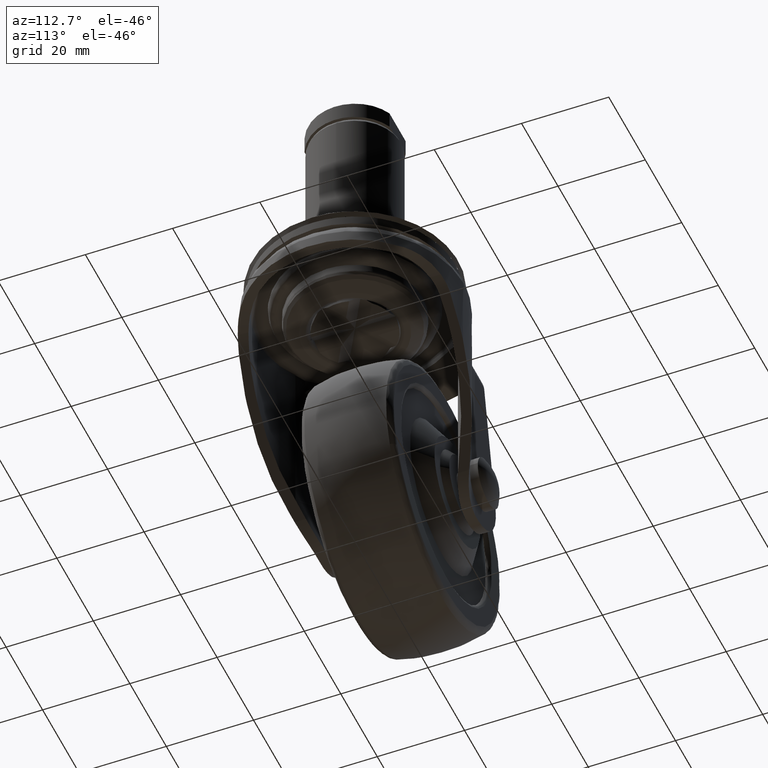
[diagram: clean part render]
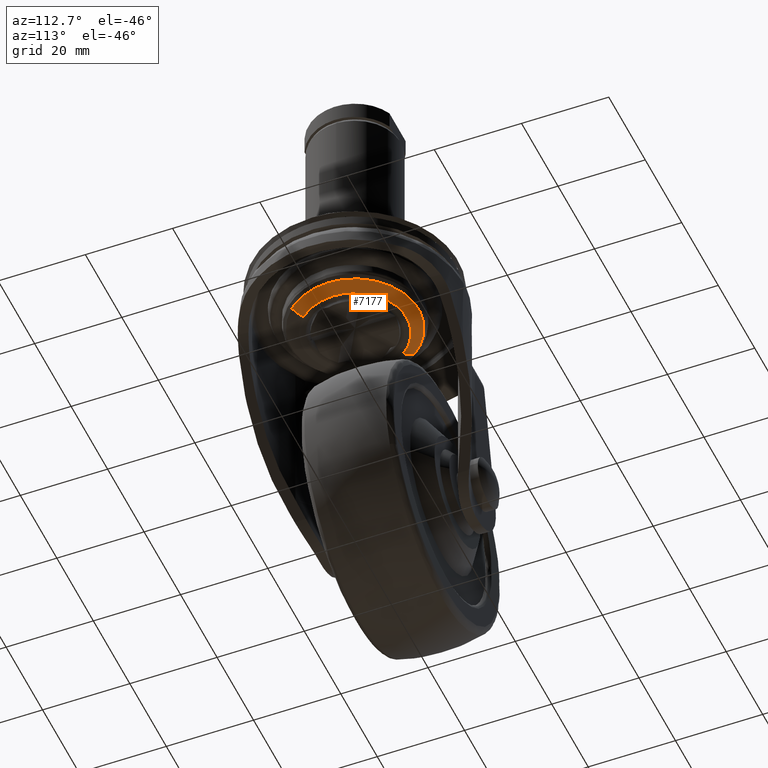
[diagram: same view with one face highlighted and labeled with its STEP entity id]
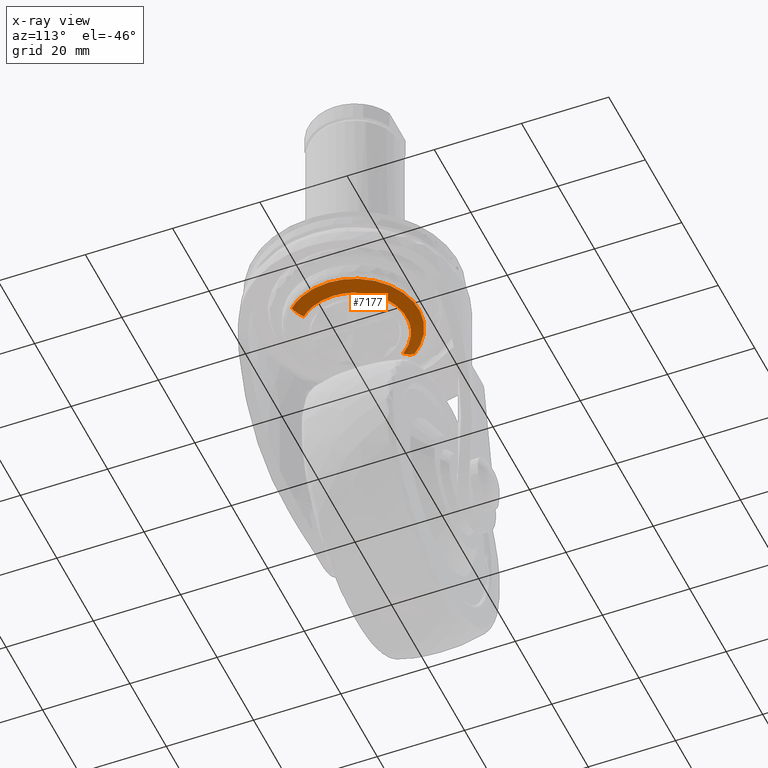
[diagram: x-ray of the same camera — body ghosted, the highlighted face saturated]
A machine part, auxiliary view. The second image highlights one B-rep face of the part: STEP entity #7177.
The next image is the same camera in x-ray: the body ghosted, the highlighted face saturated — about 0% of this face is hidden behind the body in this view.
In plain terms, the highlighted face is a freeform B-spline surface patch.
Its self-contained STEP definition (entity closure, byte-faithful):
#6856=CARTESIAN_POINT('',(-9.898739060657574,10.776566663449410,-17.293243959111489));
#6857=VERTEX_POINT('',#6856);
#6858=CARTESIAN_POINT('',(14.632820139928921,0.0,-17.293244004060352));
#6859=VERTEX_POINT('',#6858);
#6860=CARTESIAN_POINT('',(-9.898739060657574,10.776566663449405,-17.293243959111493));
#6861=CARTESIAN_POINT('',(-5.700510195016406,14.632820139928926,-17.293244004060348));
#6862=CARTESIAN_POINT('',(0.0,14.632820139928921,-17.293244004060352));
#6863=CARTESIAN_POINT('',(14.632820139928928,14.632820139928928,-17.293244004060355));
#6864=CARTESIAN_POINT('',(14.632820139928921,0.0,-17.293244004060352));
#6872=(BOUNDED_CURVE()B_SPLINE_CURVE(2,(#6860,#6861,#6862,#6863,#6864),.UNSPECIFIED.,.F.,.U.)B_SPLINE_CURVE_WITH_KNOTS((3,2,3),(0.131403499882465,0.250000000000000,0.500000000000000),.UNSPECIFIED.)CURVE()GEOMETRIC_REPRESENTATION_ITEM()RATIONAL_B_SPLINE_CURVE((0.853937711585461,0.861055557362260,1.0,0.707106781186548,1.0))REPRESENTATION_ITEM(''));
#6873=EDGE_CURVE('',#6857,#6859,#6872,.T.);
#6907=CARTESIAN_POINT('',(10.640535781752460,-10.044820730616721,-17.293244004522091));
#6908=VERTEX_POINT('',#6907);
#6924=CARTESIAN_POINT('',(14.632820139928921,0.0,-17.293244004060352));
#6925=CARTESIAN_POINT('',(14.632820139928915,-5.815771183991155,-17.293244004060348));
#6926=CARTESIAN_POINT('',(10.640535781752458,-10.044820730616721,-17.293244004522094));
#6934=(BOUNDED_CURVE()B_SPLINE_CURVE(2,(#6924,#6925,#6926),.UNSPECIFIED.,.F.,.U.)B_SPLINE_CURVE_WITH_KNOTS((3,3),(0.500000000000000,0.620655485560568),.UNSPECIFIED.)CURVE()GEOMETRIC_REPRESENTATION_ITEM()RATIONAL_B_SPLINE_CURVE((1.0,0.858643305866661,0.853730296276479))REPRESENTATION_ITEM(''));
#6935=EDGE_CURVE('',#6859,#6908,#6934,.T.);
#6957=CARTESIAN_POINT('',(-11.729185456977399,8.749036030896161,-17.293244076953780));
#6958=VERTEX_POINT('',#6957);
#6959=CARTESIAN_POINT('',(-11.729185456977403,8.749036030896161,-17.293244076953776));
#6960=CARTESIAN_POINT('',(-10.908998709066250,9.848599867244309,-17.293244004060352));
#6961=CARTESIAN_POINT('',(-9.898739060657574,10.776566663449405,-17.293243959111493));
#6969=(BOUNDED_CURVE()B_SPLINE_CURVE(2,(#6959,#6960,#6961),.UNSPECIFIED.,.F.,.U.)B_SPLINE_CURVE_WITH_KNOTS((3,3),(0.103156604492623,0.131403499882465),.UNSPECIFIED.)CURVE()GEOMETRIC_REPRESENTATION_ITEM()RATIONAL_B_SPLINE_CURVE((0.858025367929900,0.852242408226096,0.853937711585461))REPRESENTATION_ITEM(''));
#6970=EDGE_CURVE('',#6958,#6857,#6969,.T.);
#7033=CARTESIAN_POINT('',(-9.506558329628382,7.091133622677619,-18.655641609704279));
#7034=VERTEX_POINT('',#7033);
#7035=CARTESIAN_POINT('',(-11.729185456977401,8.749036030896161,-17.293244076953780));
#7036=CARTESIAN_POINT('',(-10.782327852762174,8.042755844247861,-18.392016281416272));
#7037=CARTESIAN_POINT('',(-9.506558329628382,7.091133622677619,-18.655641609704286));
#7045=(BOUNDED_CURVE()B_SPLINE_CURVE(2,(#7035,#7036,#7037),.UNSPECIFIED.,.F.,.U.)B_SPLINE_CURVE_WITH_KNOTS((3,3),(-1.485345873138249,-0.507939246962306),.UNSPECIFIED.)CURVE()GEOMETRIC_REPRESENTATION_ITEM()RATIONAL_B_SPLINE_CURVE((0.936316296584283,0.896796756868983,0.936863059166508))REPRESENTATION_ITEM(''));
#7046=EDGE_CURVE('',#6958,#7034,#7045,.T.);
#7063=CARTESIAN_POINT('',(8.624217249295594,-8.141386673364671,-18.655639596914678));
#7064=VERTEX_POINT('',#7063);
#7080=CARTESIAN_POINT('',(10.640535781752458,-10.044820730616721,-17.293244004522094));
#7081=CARTESIAN_POINT('',(9.781567032526896,-9.233941722607879,-18.392008836652870));
#7082=CARTESIAN_POINT('',(8.624217249295594,-8.141386673364671,-18.655639596914675));
#7090=(BOUNDED_CURVE()B_SPLINE_CURVE(2,(#7080,#7081,#7082),.UNSPECIFIED.,.F.,.U.)B_SPLINE_CURVE_WITH_KNOTS((3,3),(-1.485345940408771,-0.507945573745312),.UNSPECIFIED.)CURVE()GEOMETRIC_REPRESENTATION_ITEM()RATIONAL_B_SPLINE_CURVE((0.895948071642560,0.858132609629851,0.896470759627661))REPRESENTATION_ITEM(''));
#7091=EDGE_CURVE('',#6908,#7064,#7090,.T.);
#7096=CARTESIAN_POINT('',(-11.818367356097420,8.815558608558774,-17.186729282682961));
#7097=CARTESIAN_POINT('',(-3.002808747538644,20.633925964656189,-17.186729282682954));
#7098=CARTESIAN_POINT('',(8.815558608558774,11.818367356097420,-17.186729282682961));
#7099=CARTESIAN_POINT('',(20.633925964656189,3.002808747538645,-17.186729282682954));
#7100=CARTESIAN_POINT('',(11.818367356097420,-8.815558608558773,-17.186729282682961));
#7101=CARTESIAN_POINT('',(11.307718814735729,-9.500147336244000,-17.186729282682965));
#7102=CARTESIAN_POINT('',(10.721440165424355,-10.121195646949484,-17.186729282682965));
#7103=CARTESIAN_POINT('',(-10.800452867087161,8.056275658046880,-18.437964735261733));
#7104=CARTESIAN_POINT('',(-2.744177209040279,18.856728525134038,-18.437964735261733));
#7105=CARTESIAN_POINT('',(8.056275658046880,10.800452867087161,-18.437964735261733));
#7106=CARTESIAN_POINT('',(18.856728525134038,2.744177209040279,-18.437964735261733));
#7107=CARTESIAN_POINT('',(10.800452867087161,-8.056275658046880,-18.437964735261733));
#7108=CARTESIAN_POINT('',(10.333786420153755,-8.681900845005448,-18.437964735261744));
#7109=CARTESIAN_POINT('',(9.798003876924538,-9.249458343080516,-18.437964735261740));
#7110=CARTESIAN_POINT('',(-9.384526694920922,7.000107764460136,-18.678616182787572));
#7111=CARTESIAN_POINT('',(-2.384418930460786,16.384634459381065,-18.678616182787575));
#7112=CARTESIAN_POINT('',(7.000107764460136,9.384526694920922,-18.678616182787572));
#7113=CARTESIAN_POINT('',(16.384634459381065,2.384418930460786,-18.678616182787575));
#7114=CARTESIAN_POINT('',(9.384526694920924,-7.000107764460136,-18.678616182787572));
#7115=CARTESIAN_POINT('',(8.979039648890083,-7.543714253954589,-18.678616182787575));
#7116=CARTESIAN_POINT('',(8.513497542324394,-8.036865657616470,-18.678616182787575));
#7124=(BOUNDED_SURFACE()B_SPLINE_SURFACE(2,2,((#7096,#7103,#7110),(#7097,#7104,#7111),(#7098,#7105,#7112),(#7099,#7106,#7113),(#7100,#7107,#7114),(#7101,#7108,#7115),(#7102,#7109,#7116)),.UNSPECIFIED.,.F.,.F.,.U.)B_SPLINE_SURFACE_WITH_KNOTS((3,2,2,3),(3,3),(0.0,24.428790788041699,48.857581576083390,50.811884839126733),(0.0,3.471904711078901),.UNSPECIFIED.)GEOMETRIC_REPRESENTATION_ITEM()RATIONAL_B_SPLINE_SURFACE(((0.940462943924452,0.892622331392412,0.941065274525991),(0.665007725103644,0.631179303566121,0.665433637156508),(0.940462943924452,0.892622331392412,0.941065274525991),(0.665007725103644,0.631179303566121,0.665433637156508),(0.940462943924452,0.892622331392412,0.941065274525991),(0.918426526418787,0.871706889166309,0.919014743536432),(0.899915935714029,0.854137917696382,0.900492297505203)))REPRESENTATION_ITEM('')SURFACE());
#7125=ORIENTED_EDGE('',*,*,#6935,.T.);
#7126=ORIENTED_EDGE('',*,*,#7091,.T.);
#7127=CARTESIAN_POINT('',(11.859986720644541,0.0,-18.655640052190599));
#7128=VERTEX_POINT('',#7127);
#7129=CARTESIAN_POINT('',(11.859986720644541,0.0,-18.655640052190599));
#7130=CARTESIAN_POINT('',(11.859986720644541,-4.713717115620938,-18.655640052190591));
#7131=CARTESIAN_POINT('',(8.624217249295594,-8.141386673364671,-18.655639596914678));
#7139=(BOUNDED_CURVE()B_SPLINE_CURVE(2,(#7129,#7130,#7131),.UNSPECIFIED.,.F.,.U.)B_SPLINE_CURVE_WITH_KNOTS((3,3),(0.500000000000000,0.620655494168413),.UNSPECIFIED.)CURVE()GEOMETRIC_REPRESENTATION_ITEM()RATIONAL_B_SPLINE_CURVE((1.0,0.858643295781943,0.853730295575469))REPRESENTATION_ITEM(''));
#7140=EDGE_CURVE('',#7128,#7064,#7139,.T.);
#7141=ORIENTED_EDGE('',*,*,#7140,.F.);
#7142=CARTESIAN_POINT('',(-1.369382002978058,11.780610962202701,-18.655641593484980));
#7143=VERTEX_POINT('',#7142);
#7144=CARTESIAN_POINT('',(-1.369382002978058,11.780610962202701,-18.655641593484983));
#7145=CARTESIAN_POINT('',(-0.686985409045452,11.859934366258098,-18.655641553733513));
#7146=CARTESIAN_POINT('',(0.000005904767238,11.859935922718540,-18.655641509093659));
#7147=CARTESIAN_POINT('',(11.859989502010897,11.859962792920244,-18.655640738446472));
#7148=CARTESIAN_POINT('',(11.859986720644541,0.0,-18.655640052190599));
#7156=(BOUNDED_CURVE()B_SPLINE_CURVE(2,(#7144,#7145,#7146,#7147,#7148),.UNSPECIFIED.,.F.,.U.)B_SPLINE_CURVE_WITH_KNOTS((3,2,3),(0.230000229405598,0.250000000000000,0.500000000000000),.UNSPECIFIED.)CURVE()GEOMETRIC_REPRESENTATION_ITEM()RATIONAL_B_SPLINE_CURVE((0.956886569716985,0.976568811260300,1.0,0.707106781186547,1.0))REPRESENTATION_ITEM(''));
#7157=EDGE_CURVE('',#7143,#7128,#7156,.T.);
#7158=ORIENTED_EDGE('',*,*,#7157,.F.);
#7159=CARTESIAN_POINT('',(-9.506558329628382,7.091133622677619,-18.655641609704283));
#7160=CARTESIAN_POINT('',(-6.448984209270188,11.190169353030241,-18.655641270160462));
#7161=CARTESIAN_POINT('',(-1.369382002978058,11.780610962202701,-18.655641593484983));
#7169=(BOUNDED_CURVE()B_SPLINE_CURVE(2,(#7159,#7160,#7161),.UNSPECIFIED.,.F.,.U.)B_SPLINE_CURVE_WITH_KNOTS((3,3),(0.103156792122346,0.230000229405598),.UNSPECIFIED.)CURVE()GEOMETRIC_REPRESENTATION_ITEM()RATIONAL_B_SPLINE_CURVE((0.858025291103725,0.832056979346978,0.956886569716985))REPRESENTATION_ITEM(''));
#7170=EDGE_CURVE('',#7034,#7143,#7169,.T.);
#7171=ORIENTED_EDGE('',*,*,#7170,.F.);
#7172=ORIENTED_EDGE('',*,*,#7046,.F.);
#7173=ORIENTED_EDGE('',*,*,#6970,.T.);
#7174=ORIENTED_EDGE('',*,*,#6873,.T.);
#7175=EDGE_LOOP('',(#7125,#7126,#7141,#7158,#7171,#7172,#7173,#7174));
#7176=FACE_OUTER_BOUND('',#7175,.T.);
#7177=ADVANCED_FACE('',(#7176),#7124,.T.);